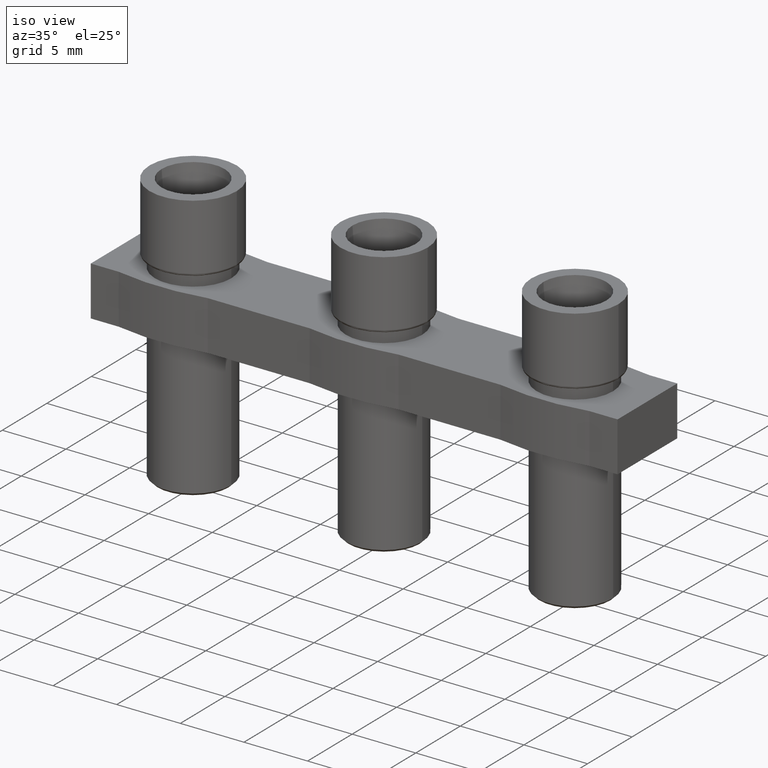
[diagram: clean part render]
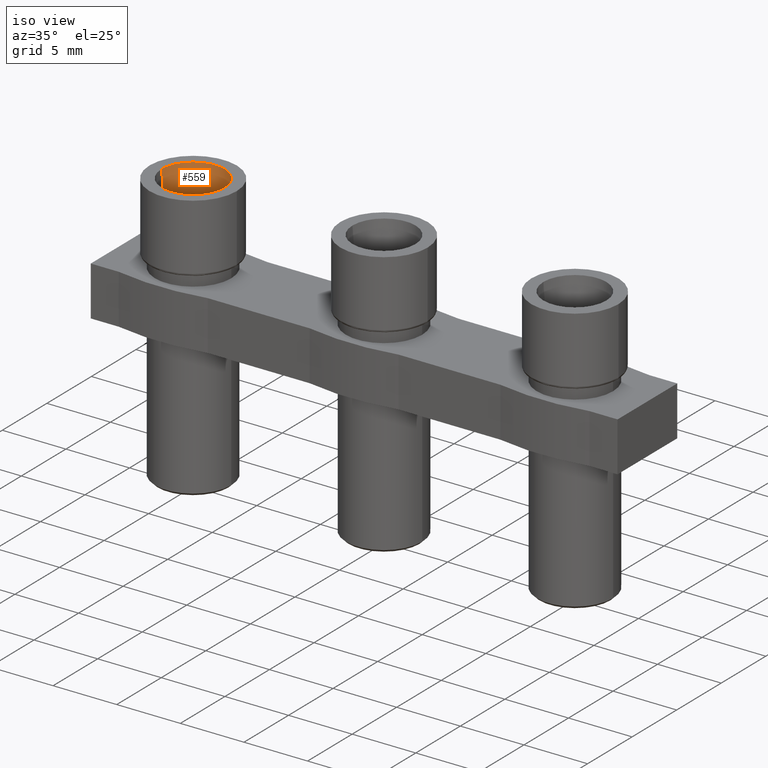
[diagram: same view with one face highlighted and labeled with its STEP entity id]
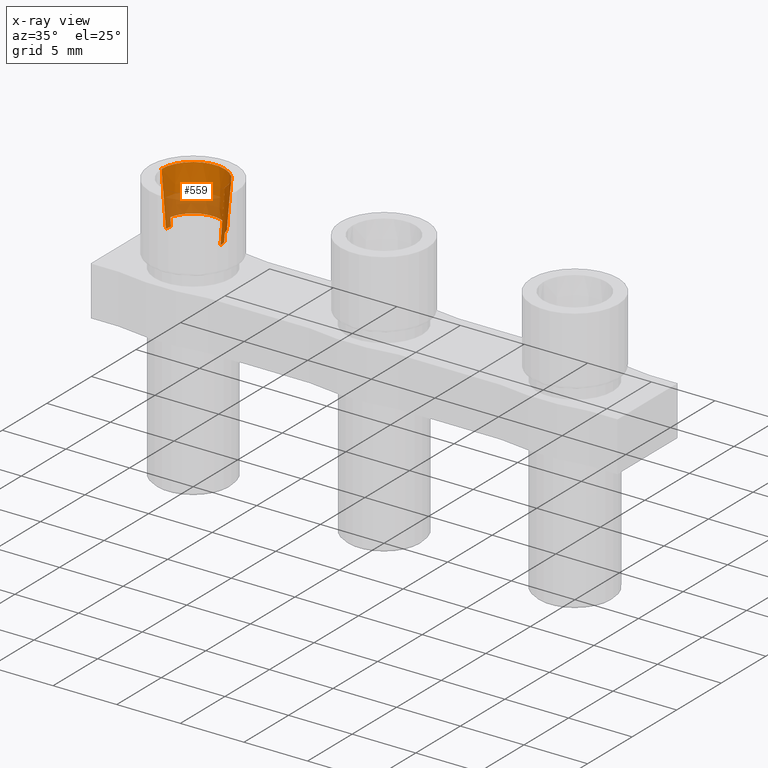
[diagram: x-ray of the same camera — body ghosted, the highlighted face saturated]
A machine part, iso view. The second image highlights one B-rep face of the part: STEP entity #559.
The next image is the same camera in x-ray: the body ghosted, the highlighted face saturated — about 32% of this face is hidden behind the body in this view.
In plain terms, the highlighted conical surface has half-angle 4.5 deg.
Its self-contained STEP definition (entity closure, byte-faithful):
#30 = B_SPLINE_CURVE_WITH_KNOTS ( 'NONE', 3,
 ( #1783, #1792, #1775, #1789 ),
 .UNSPECIFIED., .F., .F.,
 ( 4, 4 ),
 ( 2.352774682442292200E-015, 0.0006598044007064203600 ),
 .UNSPECIFIED. ) ;
#49 = B_SPLINE_CURVE_WITH_KNOTS ( 'NONE', 3,
 ( #1431, #1451, #1452, #1453 ),
 .UNSPECIFIED., .F., .F.,
 ( 4, 4 ),
 ( 8.358084661405430300E-016, 0.0006598044007075058600 ),
 .UNSPECIFIED. ) ;
#104 = EDGE_CURVE ( 'NONE', #4213, #4206, #4567, .T. ) ;
#122 = EDGE_CURVE ( 'NONE', #4284, #4192, #3646, .T. ) ;
#261 = EDGE_CURVE ( 'NONE', #4326, #4327, #49, .T. ) ;
#300 = EDGE_CURVE ( 'NONE', #4327, #4284, #5349, .T. ) ;
#318 = EDGE_CURVE ( 'NONE', #4310, #4316, #30, .T. ) ;
#319 = EDGE_CURVE ( 'NONE', #4206, #4192, #5383, .T. ) ;
#332 = EDGE_CURVE ( 'NONE', #4326, #4316, #5378, .T. ) ;
#357 = EDGE_CURVE ( 'NONE', #4213, #4310, #4773, .T. ) ;
#559 = ADVANCED_FACE ( 'NONE', ( #2499 ), #5005, .F. ) ;
#760 = EDGE_LOOP ( 'NONE', ( #1117, #1125, #1108, #1053, #1120, #1146, #1131, #1118 ) ) ;
#1053 = ORIENTED_EDGE ( 'NONE', *, *, #332, .F. ) ;
#1108 = ORIENTED_EDGE ( 'NONE', *, *, #318, .T. ) ;
#1117 = ORIENTED_EDGE ( 'NONE', *, *, #104, .F. ) ;
#1118 = ORIENTED_EDGE ( 'NONE', *, *, #319, .F. ) ;
#1120 = ORIENTED_EDGE ( 'NONE', *, *, #261, .T. ) ;
#1125 = ORIENTED_EDGE ( 'NONE', *, *, #357, .T. ) ;
#1131 = ORIENTED_EDGE ( 'NONE', *, *, #122, .T. ) ;
#1146 = ORIENTED_EDGE ( 'NONE', *, *, #300, .T. ) ;
#1431 = CARTESIAN_POINT ( 'NONE',  ( 2.139799161857933700, 0.5000000000000004400, 1.873349221397324400 ) ) ;
#1451 = CARTESIAN_POINT ( 'NONE',  ( 2.122080980430591800, 0.5000000000000003300, 1.654129280694334400 ) ) ;
#1452 = CARTESIAN_POINT ( 'NONE',  ( 2.104351486721599300, 0.5000000000000003300, 1.434910253952328900 ) ) ;
#1453 = CARTESIAN_POINT ( 'NONE',  ( 2.086609793500612900, 0.5000000000000003300, 1.215692214829430200 ) ) ;
#1731 = DIRECTION ( 'NONE',  ( 1.000000000000000000, 0.0000000000000000000, 0.0000000000000000000 ) ) ;
#1737 = DIRECTION ( 'NONE',  ( -0.0000000000000000000, 0.0000000000000000000, -1.000000000000000000 ) ) ;
#1757 = CARTESIAN_POINT ( 'NONE',  ( 0.0000000000000000000, 0.0000000000000000000, 1.215692214827868200 ) ) ;
#1775 = CARTESIAN_POINT ( 'NONE',  ( -2.122080980430610400, 0.4999999999999996700, 1.654129280694554700 ) ) ;
#1778 = DIRECTION ( 'NONE',  ( -0.0000000000000000000, 0.0000000000000000000, -1.000000000000000000 ) ) ;
#1783 = CARTESIAN_POINT ( 'NONE',  ( -2.086609793500592100, 0.4999999999999996700, 1.215692214829167800 ) ) ;
#1789 = CARTESIAN_POINT ( 'NONE',  ( -2.139799161858485700, 0.4999999999999996700, 1.873349221397448300 ) ) ;
#1792 = CARTESIAN_POINT ( 'NONE',  ( -2.104351486721629100, 0.4999999999999996700, 1.434910253952699200 ) ) ;
#1795 = CARTESIAN_POINT ( 'NONE',  ( 0.0000000000000000000, 0.0000000000000000000, 5.400000000008731100 ) ) ;
#1796 = DIRECTION ( 'NONE',  ( 1.000000000000000000, 0.0000000000000000000, 0.0000000000000000000 ) ) ;
#1853 = CARTESIAN_POINT ( 'NONE',  ( 0.0000000000000000000, 0.0000000000000000000, 1.873349221398257200 ) ) ;
#1867 = DIRECTION ( 'NONE',  ( 0.0000000000000000000, 0.0000000000000000000, 1.000000000000000000 ) ) ;
#1900 = DIRECTION ( 'NONE',  ( 1.000000000000000000, 0.0000000000000000000, 0.0000000000000000000 ) ) ;
#1953 = DIRECTION ( 'NONE',  ( -0.0000000000000000000, 0.0000000000000000000, -1.000000000000000000 ) ) ;
#1975 = DIRECTION ( 'NONE',  ( 1.000000000000000000, 0.0000000000000000000, 0.0000000000000000000 ) ) ;
#1980 = CARTESIAN_POINT ( 'NONE',  ( 0.0000000000000000000, 0.0000000000000000000, 1.215692214827868200 ) ) ;
#2499 = FACE_OUTER_BOUND ( 'NONE', #760, .T. ) ;
#2502 = CARTESIAN_POINT ( 'NONE',  ( 0.0000000000000000000, 0.0000000000000000000, 5.400000000008731100 ) ) ;
#2503 = DIRECTION ( 'NONE',  ( 1.000000000000000000, 0.0000000000000000000, 0.0000000000000000000 ) ) ;
#2520 = DIRECTION ( 'NONE',  ( 0.0000000000000000000, -0.0000000000000000000, 1.000000000000000000 ) ) ;
#2584 = CARTESIAN_POINT ( 'NONE',  ( 2.475000000004001800, 0.0000000000000000000, 5.400000000008731100 ) ) ;
#2591 = CARTESIAN_POINT ( 'NONE',  ( -2.475000000004001800, 3.031000827894600100E-016, 5.400000000008731100 ) ) ;
#2597 = CARTESIAN_POINT ( 'NONE',  ( -2.145679479869289500, 2.829350167456335000E-016, 1.215692214827868200 ) ) ;
#2652 = CARTESIAN_POINT ( 'NONE',  ( 2.145679479869289500, 0.0000000000000000000, 1.215692214827868200 ) ) ;
#2688 = CARTESIAN_POINT ( 'NONE',  ( -2.086609793500592100, 0.4999999999999996700, 1.215692214829167800 ) ) ;
#2949 = CARTESIAN_POINT ( 'NONE',  ( -2.139799161858485700, 0.4999999999999996700, 1.873349221397448300 ) ) ;
#3412 = CARTESIAN_POINT ( 'NONE',  ( 2.086609793500612900, 0.5000000000000003300, 1.215692214829430200 ) ) ;
#3452 = CARTESIAN_POINT ( 'NONE',  ( 2.139799161857933700, 0.5000000000000004400, 1.873349221397324400 ) ) ;
#3643 = CARTESIAN_POINT ( 'NONE',  ( 2.475000000004001800, 0.0000000000000000000, 5.400000000008731100 ) ) ;
#3646 = LINE ( 'NONE', #3643, #5144 ) ;
#3661 = DIRECTION ( 'NONE',  ( 0.07846107419732245600, 0.0000000000000000000, 0.9969171780222279000 ) ) ;
#4192 = VERTEX_POINT ( 'NONE', #2584 ) ;
#4206 = VERTEX_POINT ( 'NONE', #2591 ) ;
#4213 = VERTEX_POINT ( 'NONE', #2597 ) ;
#4284 = VERTEX_POINT ( 'NONE', #2652 ) ;
#4310 = VERTEX_POINT ( 'NONE', #2688 ) ;
#4316 = VERTEX_POINT ( 'NONE', #2949 ) ;
#4326 = VERTEX_POINT ( 'NONE', #3452 ) ;
#4327 = VERTEX_POINT ( 'NONE', #3412 ) ;
#4554 = CARTESIAN_POINT ( 'NONE',  ( -2.475000000004001800, 3.031000827894600100E-016, 5.400000000008731100 ) ) ;
#4567 = LINE ( 'NONE', #4554, #5091 ) ;
#4612 = DIRECTION ( 'NONE',  ( -0.07846107419732245600, 9.608710337341393200E-018, 0.9969171780222279000 ) ) ;
#4773 = CIRCLE ( 'NONE', #4794, 2.145679479869289500 ) ;
#4794 = AXIS2_PLACEMENT_3D ( 'NONE', #1980, #1953, #1975 ) ;
#5005 = CONICAL_SURFACE ( 'NONE', #5013, 2.475000000004001800, 0.07854180092719763300 ) ;
#5013 = AXIS2_PLACEMENT_3D ( 'NONE', #2502, #2520, #2503 ) ;
#5091 = VECTOR ( 'NONE', #4612, 999.9999999999998900 ) ;
#5144 = VECTOR ( 'NONE', #3661, 999.9999999999998900 ) ;
#5349 = CIRCLE ( 'NONE', #5351, 2.145679479869289500 ) ;
#5351 = AXIS2_PLACEMENT_3D ( 'NONE', #1757, #1737, #1731 ) ;
#5368 = AXIS2_PLACEMENT_3D ( 'NONE', #1795, #1778, #1796 ) ;
#5378 = CIRCLE ( 'NONE', #5407, 2.197439522056754400 ) ;
#5383 = CIRCLE ( 'NONE', #5368, 2.475000000004001800 ) ;
#5407 = AXIS2_PLACEMENT_3D ( 'NONE', #1853, #1867, #1900 ) ;